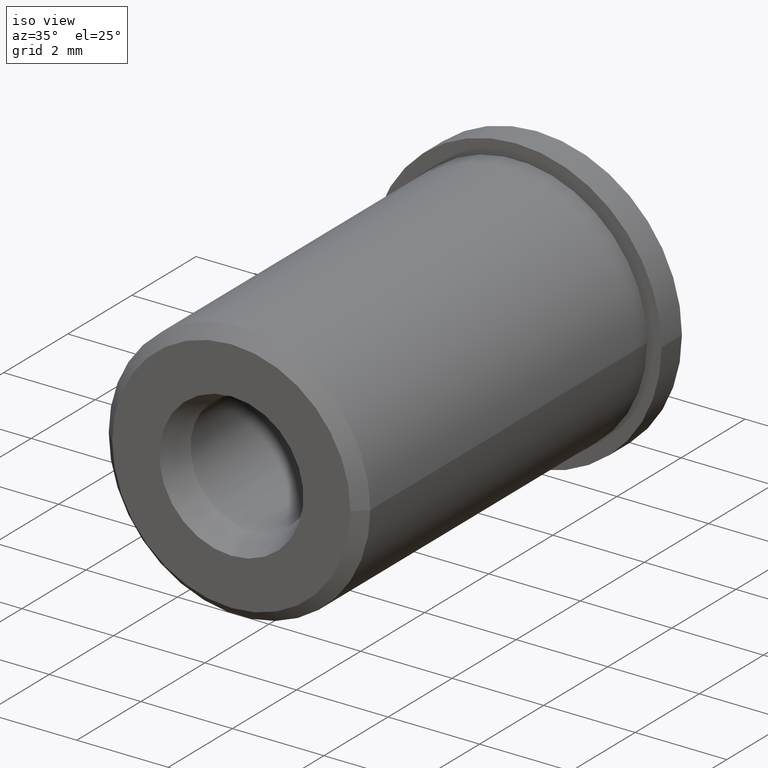
[diagram: clean part render]
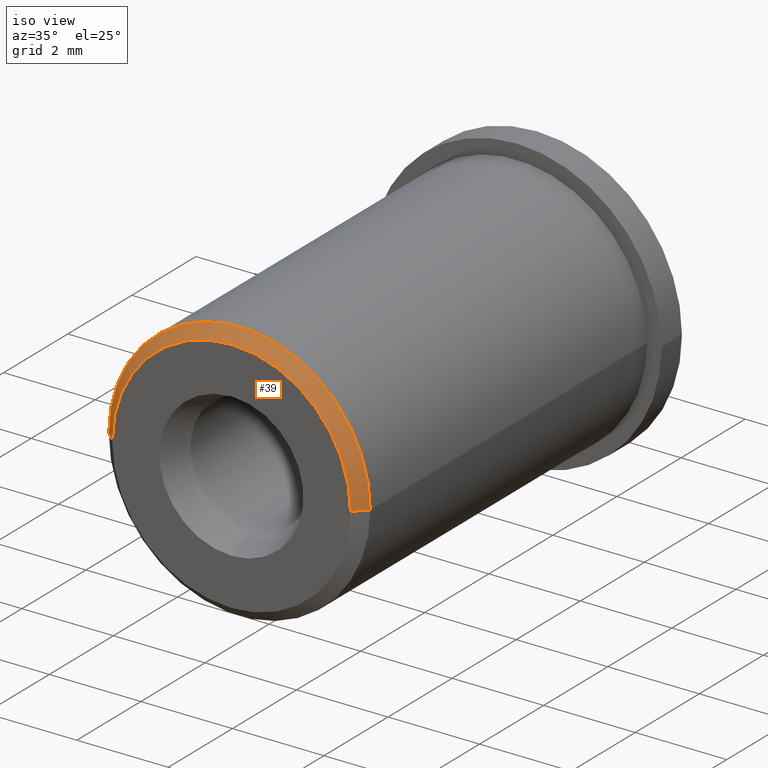
[diagram: same view with one face highlighted and labeled with its STEP entity id]
A machine part, iso view. The second image highlights one B-rep face of the part: STEP entity #39.
In plain terms, the highlighted conical surface has half-angle 45 deg.
Its self-contained STEP definition (entity closure, byte-faithful):
#22 = EDGE_CURVE ( 'NONE', #93, #99, #216, .T. ) ;
#39 = ADVANCED_FACE ( 'NONE', ( #246 ), #244, .T. ) ;
#40 = EDGE_LOOP ( 'NONE', ( #41, #94, #97, #100 ) ) ;
#41 = ORIENTED_EDGE ( 'NONE', *, *, #42, .F. ) ;
#42 = EDGE_CURVE ( 'NONE', #43, #93, #239, .T. ) ;
#43 = VERTEX_POINT ( 'NONE', #235 ) ;
#93 = VERTEX_POINT ( 'NONE', #324 ) ;
#94 = ORIENTED_EDGE ( 'NONE', *, *, #95, .T. ) ;
#95 = EDGE_CURVE ( 'NONE', #43, #96, #323, .T. ) ;
#96 = VERTEX_POINT ( 'NONE', #319 ) ;
#97 = ORIENTED_EDGE ( 'NONE', *, *, #98, .T. ) ;
#98 = EDGE_CURVE ( 'NONE', #96, #99, #318, .T. ) ;
#99 = VERTEX_POINT ( 'NONE', #373 ) ;
#100 = ORIENTED_EDGE ( 'NONE', *, *, #22, .F. ) ;
#213 = DIRECTION ( 'NONE',  ( -0.7071067811865077200, 0.7071067811865873200, 0.0000000000000000000 ) ) ;
#214 = VECTOR ( 'NONE', #213, 39.37007874015748100 ) ;
#215 = CARTESIAN_POINT ( 'NONE',  ( -0.1125000000000003800, -0.1149999999999989100, 0.0000000000000000000 ) ) ;
#216 = LINE ( 'NONE', #215, #214 ) ;
#235 = CARTESIAN_POINT ( 'NONE',  ( 0.1025000000000064200, -0.1249999999999983600, 1.316451830359096900E-017 ) ) ;
#236 = DIRECTION ( 'NONE',  ( 1.000000000000000000, 3.498098040667521200E-015, 0.0000000000000000000 ) ) ;
#237 = DIRECTION ( 'NONE',  ( 3.483106191921942700E-015, -1.000000000000000000, 0.0000000000000000000 ) ) ;
#238 = AXIS2_PLACEMENT_3D ( 'NONE', #245, #237, #236 ) ;
#239 = CIRCLE ( 'NONE', #238, 0.1025000000000038900 ) ;
#240 = DIRECTION ( 'NONE',  ( -1.000000000000000000, -3.490694658570914100E-015, 0.0000000000000000000 ) ) ;
#241 = DIRECTION ( 'NONE',  ( -3.483106191921942700E-015, 1.000000000000000000, 0.0000000000000000000 ) ) ;
#242 = CARTESIAN_POINT ( 'NONE',  ( 2.500665357200424700E-015, -0.1149999999999985200, 0.0000000000000000000 ) ) ;
#243 = AXIS2_PLACEMENT_3D ( 'NONE', #242, #241, #240 ) ;
#244 = CONICAL_SURFACE ( 'NONE', #243, 0.1125000000000028600, 0.7853981633973885500 ) ;
#245 = CARTESIAN_POINT ( 'NONE',  ( 2.535496419119644400E-015, -0.1249999999999987200, 0.0000000000000000000 ) ) ;
#246 = FACE_OUTER_BOUND ( 'NONE', #40, .T. ) ;
#318 = CIRCLE ( 'NONE', #377, 0.1125000000000028600 ) ;
#319 = CARTESIAN_POINT ( 'NONE',  ( 0.1125000000000053600, -0.1149999999999981200, 0.0000000000000000000 ) ) ;
#320 = DIRECTION ( 'NONE',  ( 0.7071067811865028300, 0.7071067811865922000, 8.659274570718837700E-017 ) ) ;
#321 = VECTOR ( 'NONE', #320, 39.37007874015748100 ) ;
#322 = CARTESIAN_POINT ( 'NONE',  ( 0.1125000000000053600, -0.1149999999999981200, 1.377682148050209500E-017 ) ) ;
#323 = LINE ( 'NONE', #322, #321 ) ;
#324 = CARTESIAN_POINT ( 'NONE',  ( -0.1025000000000013300, -0.1249999999999990700, 0.0000000000000000000 ) ) ;
#373 = CARTESIAN_POINT ( 'NONE',  ( -0.1125000000000003800, -0.1149999999999989100, 1.377682148050203900E-017 ) ) ;
#374 = DIRECTION ( 'NONE',  ( 1.000000000000000000, 3.490694658570914100E-015, 0.0000000000000000000 ) ) ;
#375 = DIRECTION ( 'NONE',  ( 3.483106191921942700E-015, -1.000000000000000000, 0.0000000000000000000 ) ) ;
#376 = CARTESIAN_POINT ( 'NONE',  ( 2.500665357200424700E-015, -0.1149999999999985200, 0.0000000000000000000 ) ) ;
#377 = AXIS2_PLACEMENT_3D ( 'NONE', #376, #375, #374 ) ;